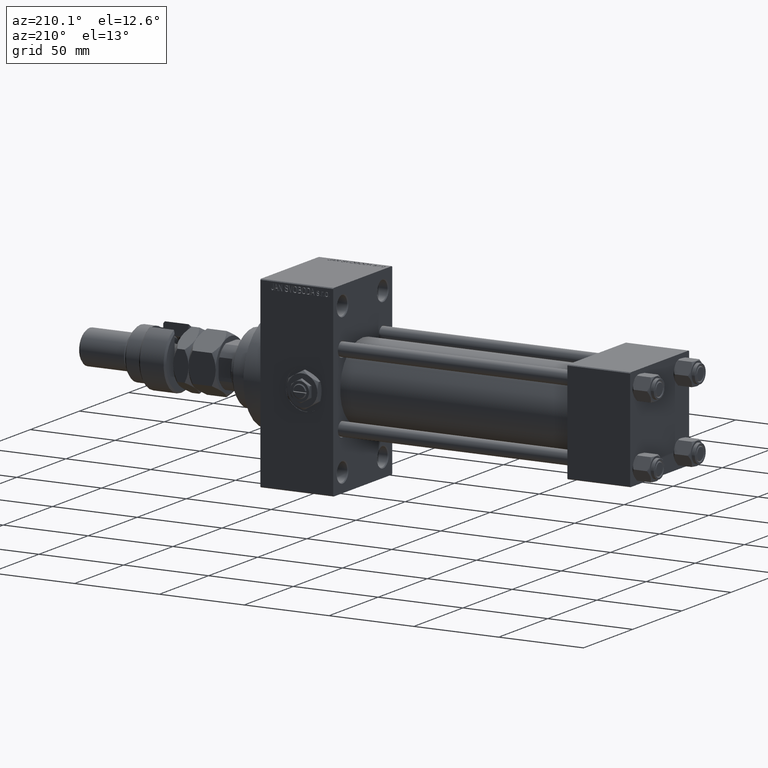
[diagram: clean part render]
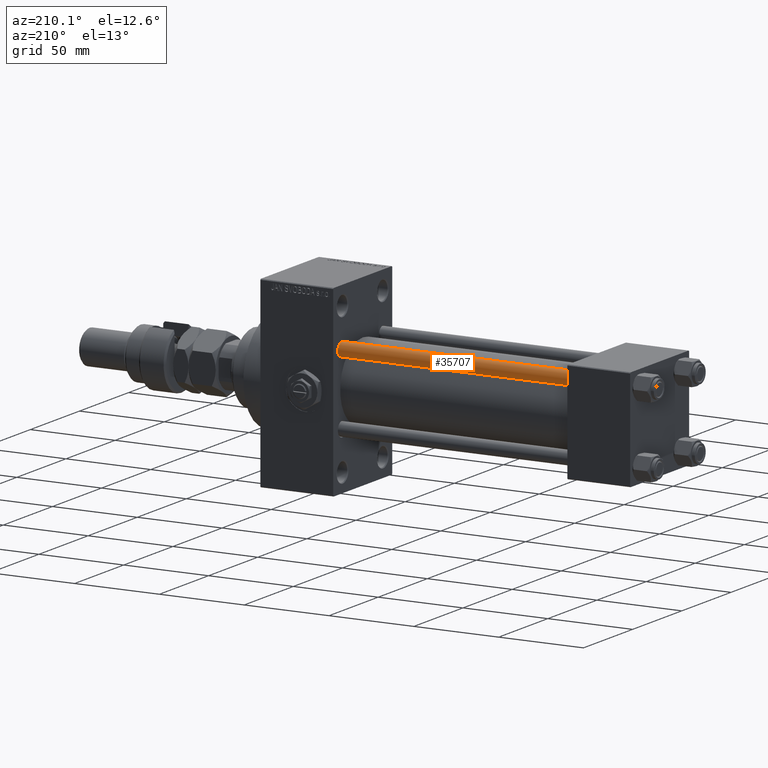
[diagram: same view with one face highlighted and labeled with its STEP entity id]
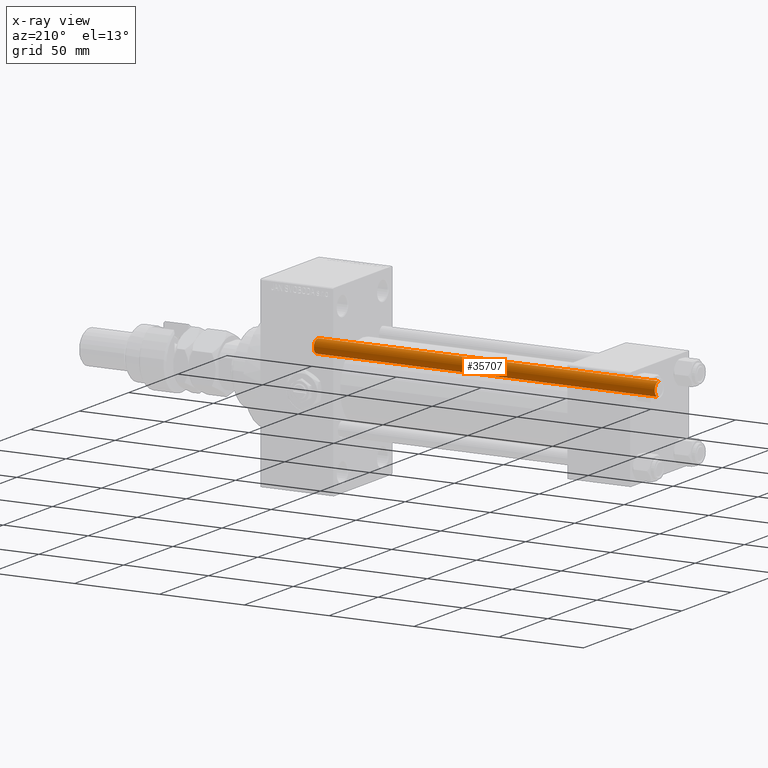
[diagram: x-ray of the same camera — body ghosted, the highlighted face saturated]
A machine part, auxiliary view. The second image highlights one B-rep face of the part: STEP entity #35707.
The next image is the same camera in x-ray: the body ghosted, the highlighted face saturated — about 0% of this face is hidden behind the body in this view.
In plain terms, the highlighted cylindrical surface (edge-blend (fillet) strip) has radius 4 mm, axis along (-1, -0, 0).
Its self-contained STEP definition (entity closure, byte-faithful):
#42 = VERTEX_POINT ( 'NONE', #2116 ) ;
#1458 = CIRCLE ( 'NONE', #8134, 4.000000000000000000 ) ;
#1832 = VECTOR ( 'NONE', #35343, 1000.000000000000000 ) ;
#1837 = CARTESIAN_POINT ( 'NONE',  ( 0.000000000000000000, 0.000000000000000000, 201.5000000000000000 ) ) ;
#2116 = CARTESIAN_POINT ( 'NONE',  ( -4.000000000000000000, 0.000000000000000000, 0.5000000000000004441 ) ) ;
#4248 = CARTESIAN_POINT ( 'NONE',  ( -4.000000000000000000, 0.000000000000000000, 201.5000000000000000 ) ) ;
#4446 = DIRECTION ( 'NONE',  ( -0.000000000000000000, -0.000000000000000000, -1.000000000000000000 ) ) ;
#4977 = CYLINDRICAL_SURFACE ( 'NONE', #44838, 4.000000000000000000 ) ;
#6810 = EDGE_CURVE ( 'NONE', #22850, #42, #20125, .T. ) ;
#6899 = DIRECTION ( 'NONE',  ( -0.000000000000000000, -0.000000000000000000, -1.000000000000000000 ) ) ;
#8134 = AXIS2_PLACEMENT_3D ( 'NONE', #35148, #33298, #17306 ) ;
#11464 = CARTESIAN_POINT ( 'NONE',  ( -4.000000000000000000, 0.000000000000000000, 202.0000000000000000 ) ) ;
#17306 = DIRECTION ( 'NONE',  ( 1.000000000000000000, 0.000000000000000000, 0.000000000000000000 ) ) ;
#17505 = EDGE_LOOP ( 'NONE', ( #23013, #42105, #43803, #42201 ) ) ;
#20125 = LINE ( 'NONE', #11464, #1832 ) ;
#20726 = FACE_OUTER_BOUND ( 'NONE', #17505, .T. ) ;
#22296 = DIRECTION ( 'NONE',  ( 0.000000000000000000, 0.000000000000000000, -1.000000000000000000 ) ) ;
#22850 = VERTEX_POINT ( 'NONE', #4248 ) ;
#23013 = ORIENTED_EDGE ( 'NONE', *, *, #45648, .T. ) ;
#24917 = DIRECTION ( 'NONE',  ( -1.000000000000000000, 0.000000000000000000, 0.000000000000000000 ) ) ;
#25157 = EDGE_CURVE ( 'NONE', #48748, #30619, #49920, .T. ) ;
#26578 = CARTESIAN_POINT ( 'NONE',  ( 4.000000000000000000, 4.898587196589412829E-16, 0.5000000000000004441 ) ) ;
#30619 = VERTEX_POINT ( 'NONE', #26578 ) ;
#33298 = DIRECTION ( 'NONE',  ( -0.000000000000000000, -0.000000000000000000, 1.000000000000000000 ) ) ;
#33346 = AXIS2_PLACEMENT_3D ( 'NONE', #1837, #22296, #50828 ) ;
#33574 = CARTESIAN_POINT ( 'NONE',  ( 4.000000000000000000, 4.898587196589412829E-16, 201.5000000000000000 ) ) ;
#35148 = CARTESIAN_POINT ( 'NONE',  ( 0.000000000000000000, 0.000000000000000000, 0.5000000000000004441 ) ) ;
#35343 = DIRECTION ( 'NONE',  ( -0.000000000000000000, -0.000000000000000000, -1.000000000000000000 ) ) ;
#35707 = ADVANCED_FACE ( 'NONE', ( #20726 ), #4977, .T. ) ;
#40977 = EDGE_CURVE ( 'NONE', #30619, #42, #1458, .T. ) ;
#41178 = VECTOR ( 'NONE', #6899, 1000.000000000000000 ) ;
#42105 = ORIENTED_EDGE ( 'NONE', *, *, #25157, .T. ) ;
#42201 = ORIENTED_EDGE ( 'NONE', *, *, #6810, .F. ) ;
#42829 = CARTESIAN_POINT ( 'NONE',  ( 4.000000000000000000, 4.898587196589412829E-16, 202.0000000000000000 ) ) ;
#43803 = ORIENTED_EDGE ( 'NONE', *, *, #40977, .T. ) ;
#44838 = AXIS2_PLACEMENT_3D ( 'NONE', #45104, #4446, #24917 ) ;
#45104 = CARTESIAN_POINT ( 'NONE',  ( 0.000000000000000000, 0.000000000000000000, 202.0000000000000000 ) ) ;
#45648 = EDGE_CURVE ( 'NONE', #22850, #48748, #45915, .T. ) ;
#45915 = CIRCLE ( 'NONE', #33346, 4.000000000000000000 ) ;
#48748 = VERTEX_POINT ( 'NONE', #33574 ) ;
#49920 = LINE ( 'NONE', #42829, #41178 ) ;
#50828 = DIRECTION ( 'NONE',  ( 1.000000000000000000, 0.000000000000000000, 0.000000000000000000 ) ) ;